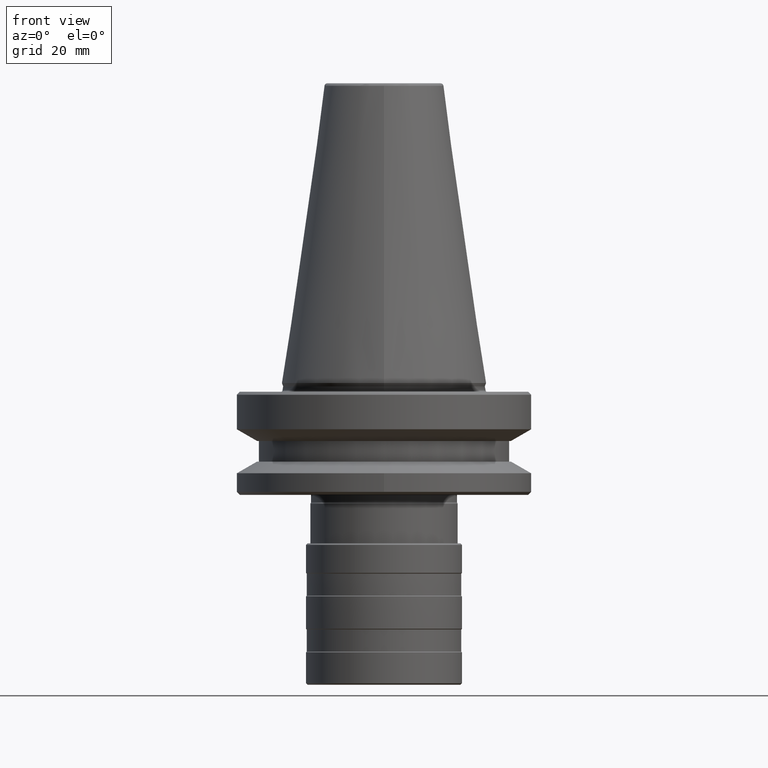
[diagram: clean part render]
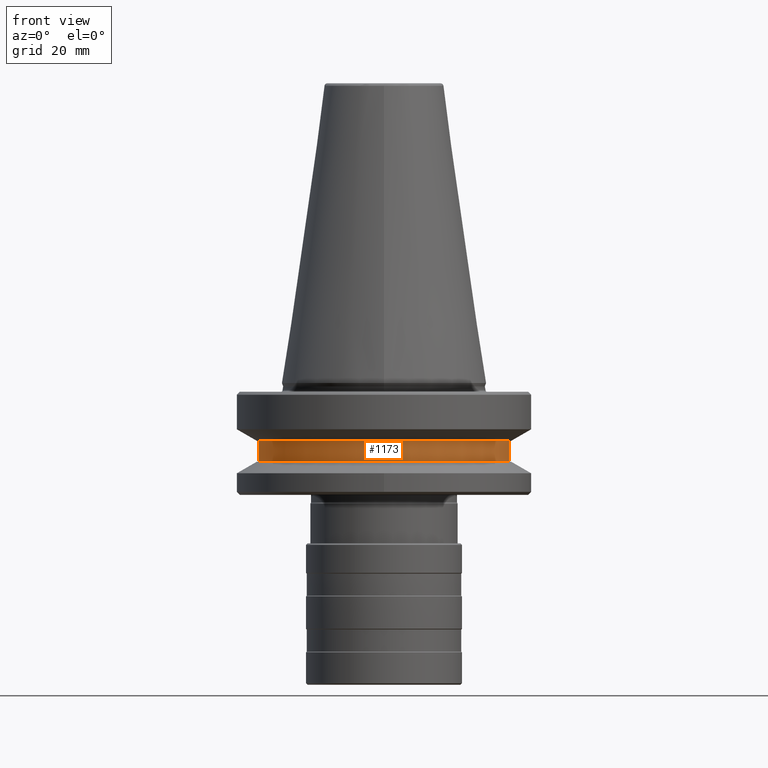
[diagram: same view with one face highlighted and labeled with its STEP entity id]
A machine part, front view. The second image highlights one B-rep face of the part: STEP entity #1173.
In plain terms, the highlighted cylindrical surface (partial cylindrical patch) has radius 42.5 mm, axis along (0, 0, 1).
Its self-contained STEP definition (entity closure, byte-faithful):
#126 = VERTEX_POINT ( 'NONE', #1632 ) ;
#130 = VECTOR ( 'NONE', #1137, 1000.000000000000000 ) ;
#178 = DIRECTION ( 'NONE',  ( 0.0000000000000000000, 0.0000000000000000000, 1.000000000000000000 ) ) ;
#198 = CARTESIAN_POINT ( 'NONE',  ( -42.50000000000000000, 5.204748896376250900E-015, -26.70000000074191600 ) ) ;
#260 = ORIENTED_EDGE ( 'NONE', *, *, #1559, .T. ) ;
#322 = LINE ( 'NONE', #1479, #130 ) ;
#389 = LINE ( 'NONE', #751, #522 ) ;
#427 = CARTESIAN_POINT ( 'NONE',  ( 42.50000000000000000, 0.0000000000000000000, -26.70000000074191600 ) ) ;
#518 = VERTEX_POINT ( 'NONE', #427 ) ;
#522 = VECTOR ( 'NONE', #749, 1000.000000000000000 ) ;
#542 = CARTESIAN_POINT ( 'NONE',  ( 0.0000000000000000000, 0.0000000000000000000, -26.70000000000000600 ) ) ;
#684 = CIRCLE ( 'NONE', #1215, 42.50000000000000000 ) ;
#749 = DIRECTION ( 'NONE',  ( 0.0000000000000000000, 0.0000000000000000000, 1.000000000000000000 ) ) ;
#751 = CARTESIAN_POINT ( 'NONE',  ( 42.50000000000000000, 0.0000000000000000000, -26.70000000000000600 ) ) ;
#800 = ORIENTED_EDGE ( 'NONE', *, *, #1482, .T. ) ;
#855 = VERTEX_POINT ( 'NONE', #198 ) ;
#978 = ORIENTED_EDGE ( 'NONE', *, *, #1127, .F. ) ;
#1115 = DIRECTION ( 'NONE',  ( 1.000000000000000000, 0.0000000000000000000, 0.0000000000000000000 ) ) ;
#1116 = DIRECTION ( 'NONE',  ( 0.0000000000000000000, 0.0000000000000000000, 1.000000000000000000 ) ) ;
#1120 = CARTESIAN_POINT ( 'NONE',  ( 0.0000000000000000000, 0.0000000000000000000, -26.70000000074191600 ) ) ;
#1127 = EDGE_CURVE ( 'NONE', #855, #1526, #322, .T. ) ;
#1137 = DIRECTION ( 'NONE',  ( 0.0000000000000000000, 0.0000000000000000000, 1.000000000000000000 ) ) ;
#1173 = ADVANCED_FACE ( 'NONE', ( #1682 ), #1602, .T. ) ;
#1215 = AXIS2_PLACEMENT_3D ( 'NONE', #1549, #1546, #1544 ) ;
#1377 = DIRECTION ( 'NONE',  ( 1.000000000000000000, 0.0000000000000000000, 0.0000000000000000000 ) ) ;
#1417 = AXIS2_PLACEMENT_3D ( 'NONE', #1120, #1116, #1115 ) ;
#1423 = ORIENTED_EDGE ( 'NONE', *, *, #2055, .T. ) ;
#1479 = CARTESIAN_POINT ( 'NONE',  ( -42.50000000000000000, 5.204748896376250900E-015, -26.70000000000000600 ) ) ;
#1482 = EDGE_CURVE ( 'NONE', #126, #1526, #684, .T. ) ;
#1524 = CARTESIAN_POINT ( 'NONE',  ( -42.50000000000000000, 5.204748896376250900E-015, -19.70000000000001000 ) ) ;
#1526 = VERTEX_POINT ( 'NONE', #1524 ) ;
#1544 = DIRECTION ( 'NONE',  ( 1.000000000000000000, 0.0000000000000000000, 0.0000000000000000000 ) ) ;
#1546 = DIRECTION ( 'NONE',  ( -0.0000000000000000000, -0.0000000000000000000, -1.000000000000000000 ) ) ;
#1549 = CARTESIAN_POINT ( 'NONE',  ( 0.0000000000000000000, 0.0000000000000000000, -19.70000000000001000 ) ) ;
#1559 = EDGE_CURVE ( 'NONE', #855, #518, #2053, .T. ) ;
#1602 = CYLINDRICAL_SURFACE ( 'NONE', #1991, 42.50000000000000000 ) ;
#1632 = CARTESIAN_POINT ( 'NONE',  ( 42.50000000000000000, 0.0000000000000000000, -19.70000000000001000 ) ) ;
#1682 = FACE_OUTER_BOUND ( 'NONE', #1931, .T. ) ;
#1931 = EDGE_LOOP ( 'NONE', ( #978, #260, #1423, #800 ) ) ;
#1991 = AXIS2_PLACEMENT_3D ( 'NONE', #542, #178, #1377 ) ;
#2053 = CIRCLE ( 'NONE', #1417, 42.50000000000000000 ) ;
#2055 = EDGE_CURVE ( 'NONE', #518, #126, #389, .T. ) ;